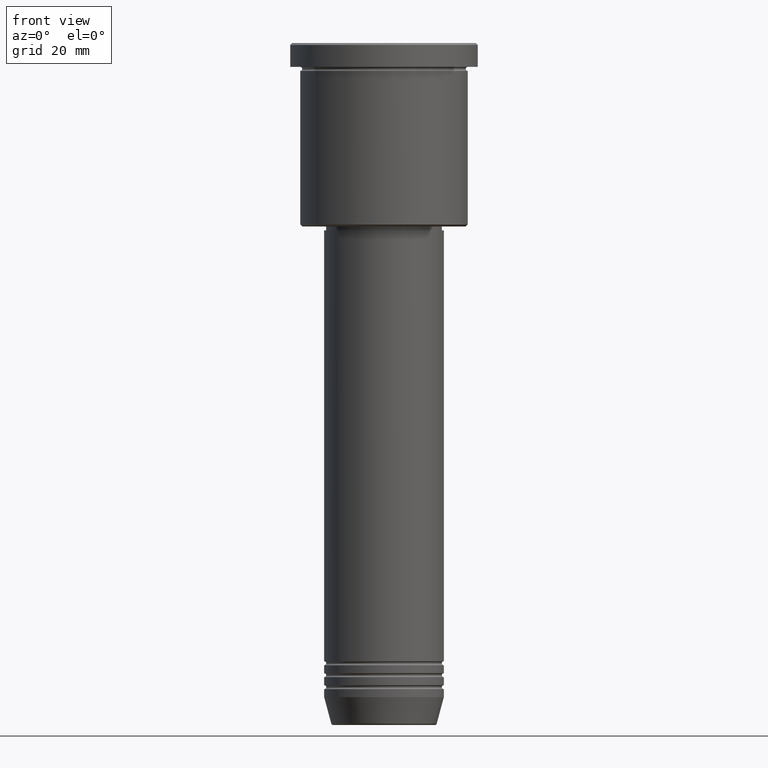
[diagram: clean part render]
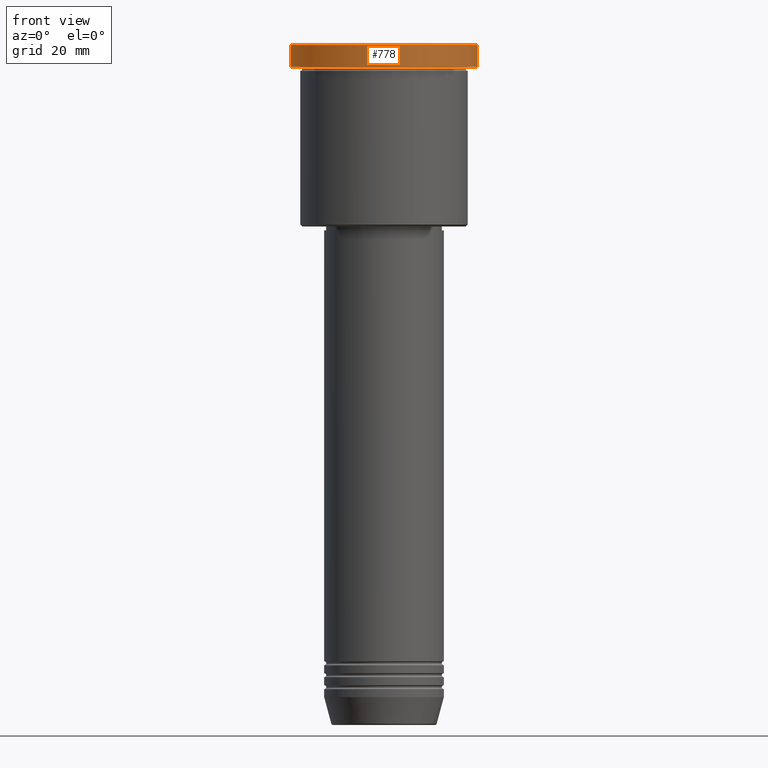
[diagram: same view with one face highlighted and labeled with its STEP entity id]
A machine part, front view. The second image highlights one B-rep face of the part: STEP entity #778.
In plain terms, the highlighted cylindrical surface (partial cylindrical patch) has radius 23.5 mm, axis along (-0, -0, 1).
Its self-contained STEP definition (entity closure, byte-faithful):
#120 = CARTESIAN_POINT ( 'NONE',  ( -23.50000000000000000, 2.877919977996280320E-15, -0.4999999999999726885 ) ) ;
#137 = CARTESIAN_POINT ( 'NONE',  ( 0.000000000000000000, 0.000000000000000000, -0.4999999999999726885 ) ) ;
#141 = VERTEX_POINT ( 'NONE', #657 ) ;
#198 = FACE_OUTER_BOUND ( 'NONE', #867, .T. ) ;
#224 = VECTOR ( 'NONE', #1050, 1000.000000000000000 ) ;
#250 = LINE ( 'NONE', #360, #428 ) ;
#265 = DIRECTION ( 'NONE',  ( 1.000000000000000000, 0.000000000000000000, 0.000000000000000000 ) ) ;
#298 = CIRCLE ( 'NONE', #591, 23.50000000000000000 ) ;
#360 = CARTESIAN_POINT ( 'NONE',  ( 23.50000000000000000, 0.000000000000000000, 0.000000000000000000 ) ) ;
#377 = CARTESIAN_POINT ( 'NONE',  ( -23.50000000000000000, 2.877919977996280320E-15, -5.999999999999994671 ) ) ;
#383 = DIRECTION ( 'NONE',  ( -0.000000000000000000, -0.000000000000000000, 1.000000000000000000 ) ) ;
#384 = AXIS2_PLACEMENT_3D ( 'NONE', #667, #1126, #387 ) ;
#387 = DIRECTION ( 'NONE',  ( 1.000000000000000000, 0.000000000000000000, 0.000000000000000000 ) ) ;
#411 = EDGE_CURVE ( 'NONE', #783, #691, #443, .T. ) ;
#417 = ORIENTED_EDGE ( 'NONE', *, *, #411, .T. ) ;
#428 = VECTOR ( 'NONE', #450, 1000.000000000000000 ) ;
#432 = VERTEX_POINT ( 'NONE', #120 ) ;
#443 = CIRCLE ( 'NONE', #384, 23.50000000000000000 ) ;
#444 = EDGE_CURVE ( 'NONE', #141, #432, #298, .T. ) ;
#450 = DIRECTION ( 'NONE',  ( -0.000000000000000000, -0.000000000000000000, 1.000000000000000000 ) ) ;
#496 = CARTESIAN_POINT ( 'NONE',  ( 0.000000000000000000, 0.000000000000000000, 0.000000000000000000 ) ) ;
#513 = DIRECTION ( 'NONE',  ( 0.000000000000000000, 0.000000000000000000, -1.000000000000000000 ) ) ;
#585 = ORIENTED_EDGE ( 'NONE', *, *, #956, .T. ) ;
#591 = AXIS2_PLACEMENT_3D ( 'NONE', #137, #513, #265 ) ;
#622 = ORIENTED_EDGE ( 'NONE', *, *, #830, .F. ) ;
#657 = CARTESIAN_POINT ( 'NONE',  ( 23.50000000000000000, 0.000000000000000000, -0.4999999999999726885 ) ) ;
#667 = CARTESIAN_POINT ( 'NONE',  ( 0.000000000000000000, 0.000000000000000000, -5.999999999999994671 ) ) ;
#691 = VERTEX_POINT ( 'NONE', #951 ) ;
#751 = LINE ( 'NONE', #948, #224 ) ;
#778 = ADVANCED_FACE ( 'NONE', ( #198 ), #1111, .T. ) ;
#783 = VERTEX_POINT ( 'NONE', #377 ) ;
#787 = ORIENTED_EDGE ( 'NONE', *, *, #444, .T. ) ;
#830 = EDGE_CURVE ( 'NONE', #783, #432, #751, .T. ) ;
#867 = EDGE_LOOP ( 'NONE', ( #622, #417, #585, #787 ) ) ;
#948 = CARTESIAN_POINT ( 'NONE',  ( -23.50000000000000000, 2.877919977996280320E-15, 0.000000000000000000 ) ) ;
#951 = CARTESIAN_POINT ( 'NONE',  ( 23.50000000000000000, 0.000000000000000000, -5.999999999999994671 ) ) ;
#956 = EDGE_CURVE ( 'NONE', #691, #141, #250, .T. ) ;
#1023 = DIRECTION ( 'NONE',  ( 1.000000000000000000, 0.000000000000000000, 0.000000000000000000 ) ) ;
#1050 = DIRECTION ( 'NONE',  ( -0.000000000000000000, -0.000000000000000000, 1.000000000000000000 ) ) ;
#1082 = AXIS2_PLACEMENT_3D ( 'NONE', #496, #383, #1023 ) ;
#1111 = CYLINDRICAL_SURFACE ( 'NONE', #1082, 23.50000000000000000 ) ;
#1126 = DIRECTION ( 'NONE',  ( -0.000000000000000000, -0.000000000000000000, 1.000000000000000000 ) ) ;